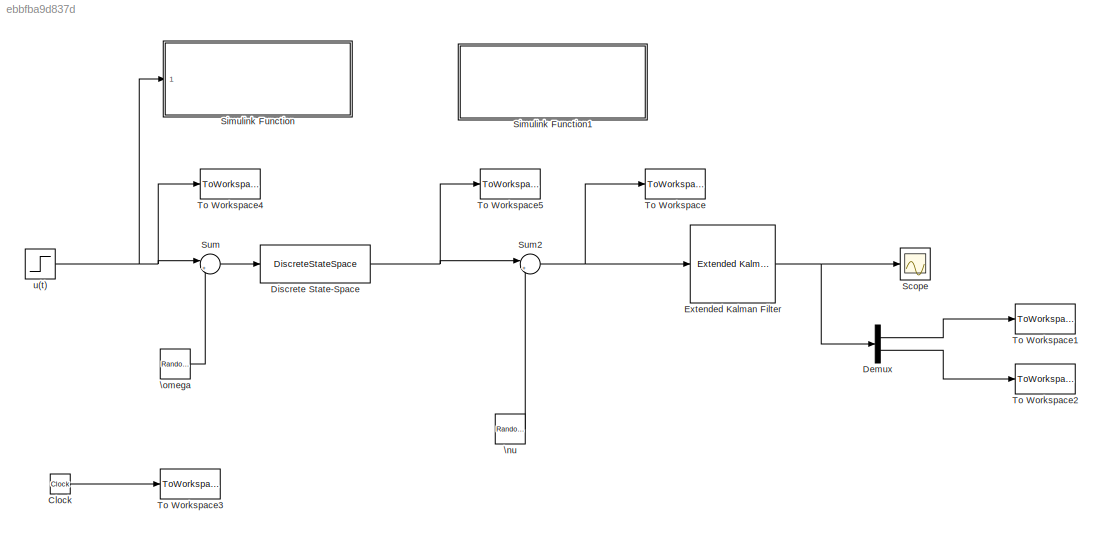
MODEL slx_ebbfba9d837d
KIND model
CONFIG AbsTol = auto
CONFIG EnableMultiTasking = off
CONFIG FixedStep = 0.01
CONFIG MaxStep = auto
CONFIG MinStep = auto
CONFIG RelTol = 1e-3
CONFIG SampleTimeConstraint = Unconstrained
CONFIG Solver = FixedStepDiscrete
CONFIG SolverName = FixedStepDiscrete
CONFIG StartTime = 0.0
CONFIG StopTime = 10.0
BLOCK [Clock] Clock
BLOCK [Demux] Demux
  DisplayOption = bar
  Outputs = 2
  Ports = [1, 2]
BLOCK [DiscreteStateSpace] Discrete State-Space
  A = 0.95
  B = 0.05
  D = 0
  SampleTime = 0.01
BLOCK [Reference] Extended Kalman Filter  REF=sharedTrackingLibrary/Extended Kalman Filter
  Ports = [1, 1]
  SourceBlock = sharedTrackingLibrary/Extended Kalman Filter
  SourceProductBaseCode = CT
  SourceProductName = Control System Toolbox
  SourceType = Extended Kalman Filter
BLOCK [Scope] Scope
  Floating = off
  NumInputPorts = 1
  Ports = [1]
  ScopeSpecificationString = Simulink.scopes.TimeScopeBlockCfg('CurrentConfiguration', extmgr.ConfigurationSet(extmgr.Configuration('Core','General UI',true),extmgr.Configuration('Core','Source UI',true),extmgr.Configuration('Sources','WiredSimulink',true),extmgr.Configuration('Visuals','Time Domain',true,'SerializedDisplays',{struct('MinYLimReal','-0.17039','MaxYLimReal','1.18867','YLabelReal','','MinYLimMag','0.00000','MaxY...<+1371ch>
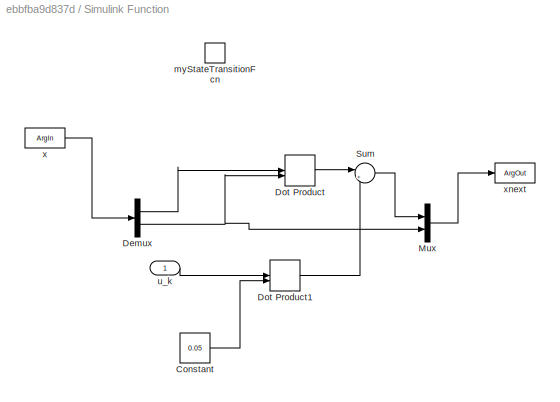
BLOCK [SubSystem] Simulink Function
  Ports = [1, 0, 0, 1]
  RequestExecContextInheritance = off
  TreatAsAtomicUnit = on
BLOCK [Constant] Simulink Function/Constant
  Value = 0.05
BLOCK [Demux] Simulink Function/Demux
  DisplayOption = bar
  Outputs = 2
  Ports = [1, 2]
BLOCK [DotProduct] Simulink Function/Dot Product
  OutDataTypeStr = Inherit: Inherit via internal rule
BLOCK [DotProduct] Simulink Function/Dot Product1
  OutDataTypeStr = Inherit: Inherit via internal rule
BLOCK [Mux] Simulink Function/Mux
  DisplayOption = bar
  Inputs = 2
  Ports = [2, 1]
BLOCK [Sum] Simulink Function/Sum
  IconShape = round
  InputSameDT = off
  Inputs = |++
  OutDataTypeStr = Inherit: Inherit via internal rule
  Ports = [2, 1]
  SaturateOnIntegerOverflow = off
BLOCK [TriggerPort] Simulink Function/myStateTransitionFcn
  FunctionName = myStateTransitionFcn
  IsSimulinkFunction = on
  Ports = []
  StatesWhenEnabling = held
  TriggerType = function-call
  VariantControl = Variant
BLOCK [Inport] Simulink Function/u_k
  IconDisplay = Port number
BLOCK [ArgIn] Simulink Function/x
  ArgumentName = x
  DisableCoverage = on
  PortDimensions = 2
BLOCK [ArgOut] Simulink Function/xnext
  ArgumentName = xnext
  DisableCoverage = on
  PortDimensions = 2
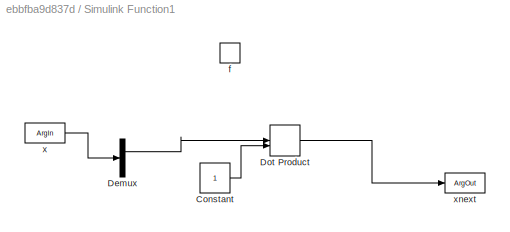
BLOCK [SubSystem] Simulink Function1
  Ports = [0, 0, 0, 1]
  RequestExecContextInheritance = off
  TreatAsAtomicUnit = on
BLOCK [Constant] Simulink Function1/Constant
BLOCK [Demux] Simulink Function1/Demux
  DisplayOption = bar
  Outputs = 2
  Ports = [1, 2]
BLOCK [DotProduct] Simulink Function1/Dot Product
  OutDataTypeStr = Inherit: Inherit via internal rule
BLOCK [TriggerPort] Simulink Function1/f
  FunctionName = myMeasurementFcn
  IsSimulinkFunction = on
  Ports = []
  StatesWhenEnabling = held
  TriggerType = function-call
  VariantControl = Variant
BLOCK [ArgIn] Simulink Function1/x
  ArgumentName = x
  DisableCoverage = on
  PortDimensions = 2
BLOCK [ArgOut] Simulink Function1/xnext
  ArgumentName = y
  DisableCoverage = on
BLOCK [Sum] Sum
  IconShape = round
  InputSameDT = off
  Inputs = |++
  OutDataTypeStr = Inherit: Inherit via internal rule
  Ports = [2, 1]
  SaturateOnIntegerOverflow = off
BLOCK [Sum] Sum2
  IconShape = round
  InputSameDT = off
  Inputs = |++
  OutDataTypeStr = Inherit: Inherit via internal rule
  Ports = [2, 1]
  SaturateOnIntegerOverflow = off
BLOCK [ToWorkspace] To Workspace
  FixptAsFi = on
  MaxDataPoints = inf
  Ports = [1]
  SampleTime = -1
  Save2DSignal = 3-D array (concatenate along third dimension)
  VariableName = y
BLOCK [ToWorkspace] To Workspace1
  FixptAsFi = on
  MaxDataPoints = inf
  Ports = [1]
  SampleTime = -1
  Save2DSignal = 3-D array (concatenate along third dimension)
  VariableName = xe
BLOCK [ToWorkspace] To Workspace2
  FixptAsFi = on
  MaxDataPoints = inf
  Ports = [1]
  SampleTime = -1
  Save2DSignal = 3-D array (concatenate along third dimension)
  VariableName = par
BLOCK [ToWorkspace] To Workspace3
  FixptAsFi = on
  MaxDataPoints = inf
  Ports = [1]
  SampleTime = -1
  Save2DSignal = 3-D array (concatenate along third dimension)
  VariableName = t
BLOCK [ToWorkspace] To Workspace4
  FixptAsFi = on
  MaxDataPoints = inf
  Ports = [1]
  SampleTime = -1
  Save2DSignal = 3-D array (concatenate along third dimension)
  VariableName = u
BLOCK [ToWorkspace] To Workspace5
  FixptAsFi = on
  MaxDataPoints = inf
  Ports = [1]
  SampleTime = -1
  Save2DSignal = 3-D array (concatenate along third dimension)
  VariableName = x
BLOCK [RandomNumber] \nu
  Variance = 0.0005
BLOCK [RandomNumber] \omega
  Variance = 0.001
BLOCK [Step] u(t)
  SampleTime = 0
LINE Clock:1 -> To Workspace3:1
LINE Demux:1 -> To Workspace1:1
LINE Demux:2 -> To Workspace2:1
NET Discrete State-Space:1 -> Sum2:1, To Workspace5:1
NET Extended Kalman Filter:1 -> Demux:1, Scope:1
LINE Simulink Function/Constant:1 -> Simulink Function/Dot Product1:2
LINE Simulink Function/Demux:1 -> Simulink Function/Dot Product:1
NET Simulink Function/Demux:2 -> Simulink Function/Dot Product:2, Simulink Function/Mux:2
LINE Simulink Function/Dot Product1:1 -> Simulink Function/Sum:2
LINE Simulink Function/Dot Product:1 -> Simulink Function/Sum:1
LINE Simulink Function/Mux:1 -> Simulink Function/xnext:1
LINE Simulink Function/Sum:1 -> Simulink Function/Mux:1
LINE Simulink Function/u_k:1 -> Simulink Function/Dot Product1:1
LINE Simulink Function/x:1 -> Simulink Function/Demux:1
LINE Simulink Function1/Constant:1 -> Simulink Function1/Dot Product:2
LINE Simulink Function1/Demux:1 -> Simulink Function1/Dot Product:1
LINE Simulink Function1/Dot Product:1 -> Simulink Function1/xnext:1
LINE Simulink Function1/x:1 -> Simulink Function1/Demux:1
NET Sum2:1 -> Extended Kalman Filter:1, To Workspace:1
LINE Sum:1 -> Discrete State-Space:1
LINE \nu:1 -> Sum2:2
LINE \omega:1 -> Sum:2
NET u(t):1 -> Simulink Function:1, Sum:1, To Workspace4:1
note: NET lines group one-source signal fan-out (src -> all destinations, sorted); 1:1 wires keep LINE
